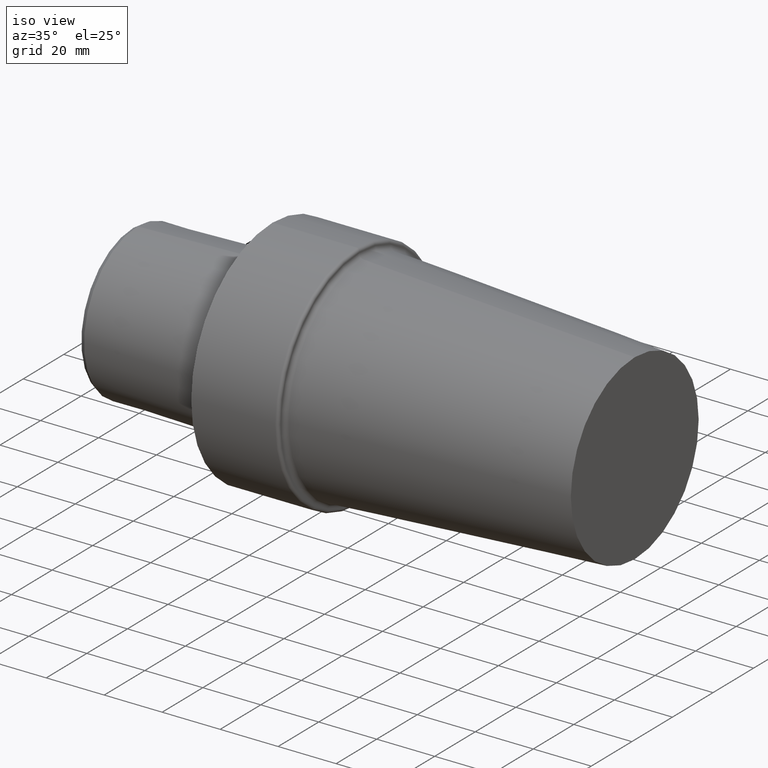
[diagram: clean part render]
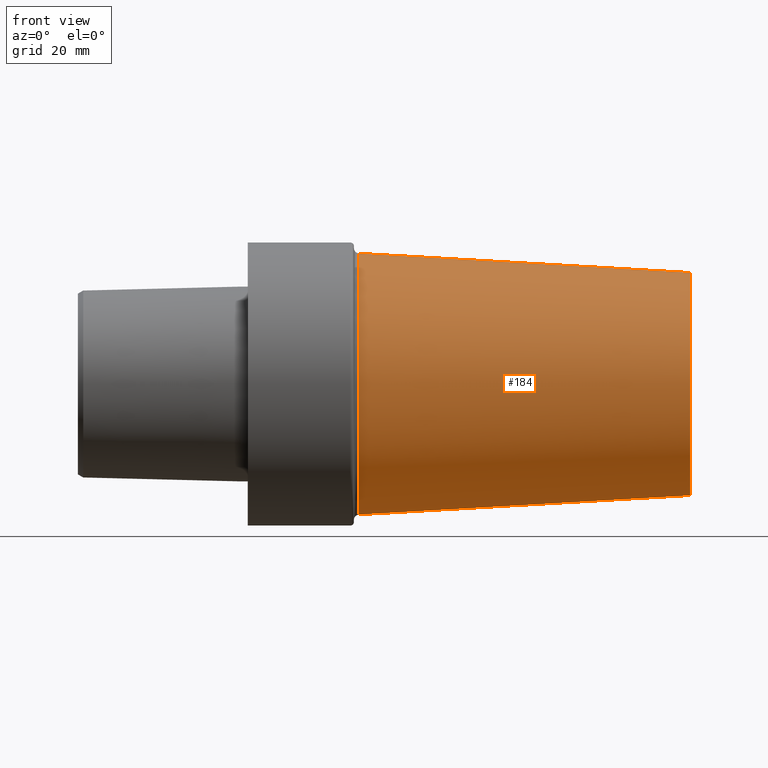
[diagram: tour spotlight — one face highlighted and labeled with its STEP entity id]
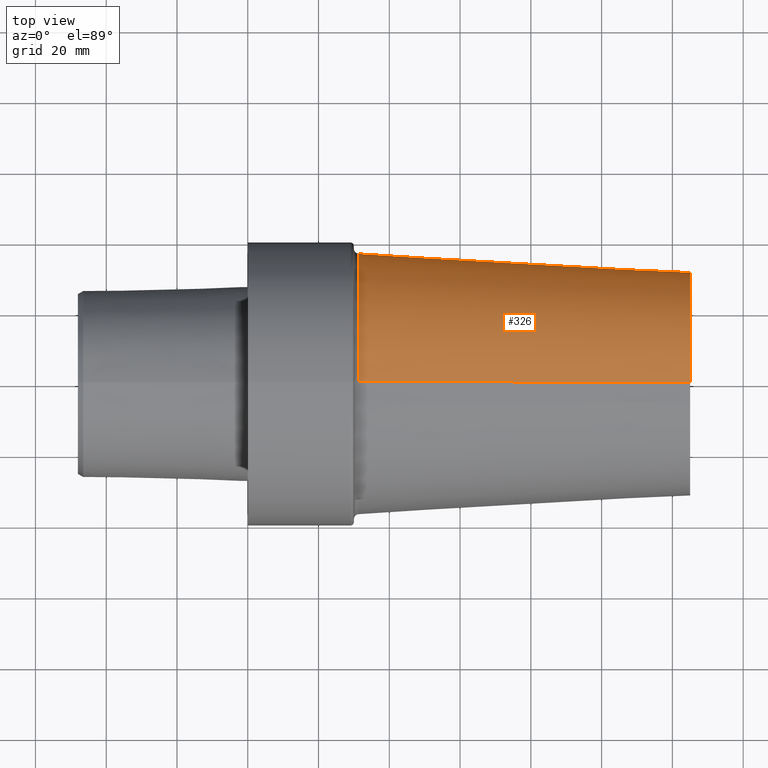
[diagram: tour spotlight — one face highlighted and labeled with its STEP entity id]
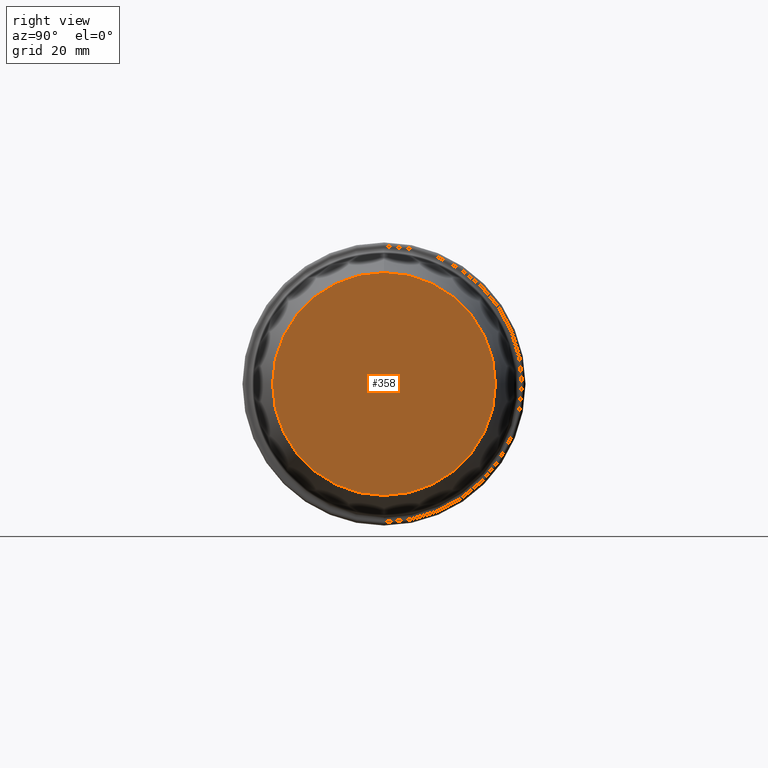
[diagram: tour spotlight — one face highlighted and labeled with its STEP entity id]
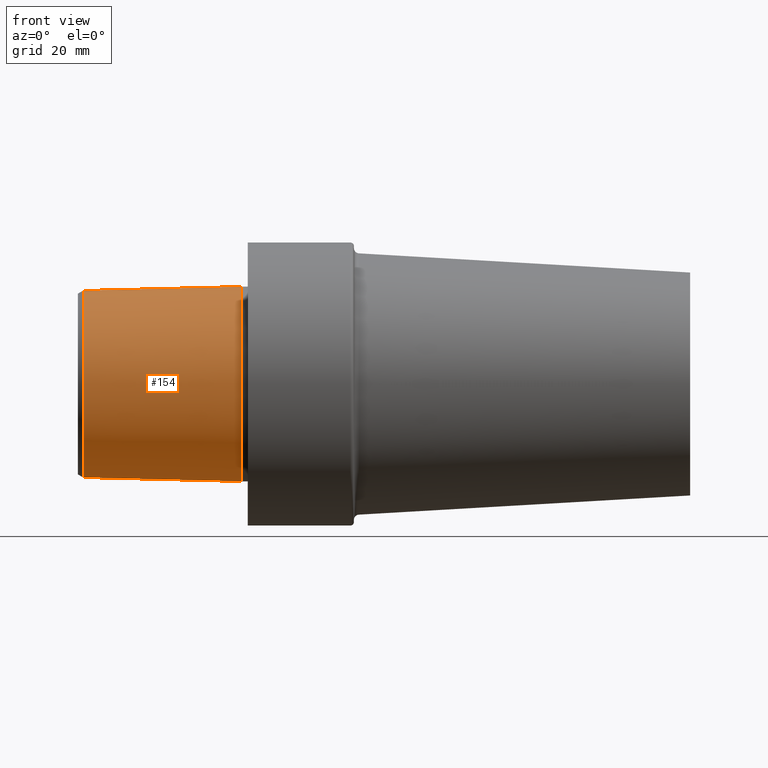
[diagram: tour spotlight — one face highlighted and labeled with its STEP entity id]
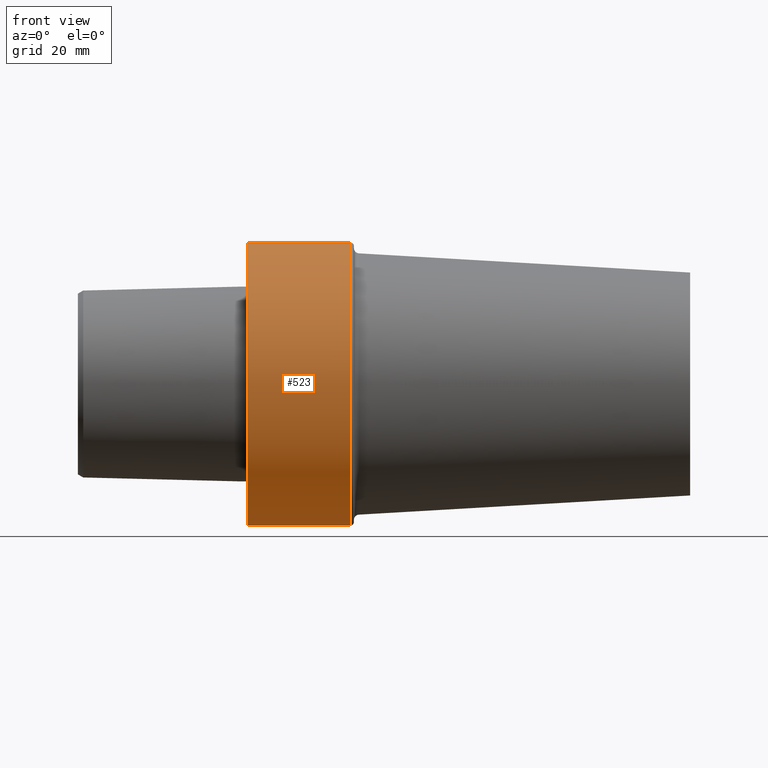
[diagram: tour spotlight — one face highlighted and labeled with its STEP entity id]
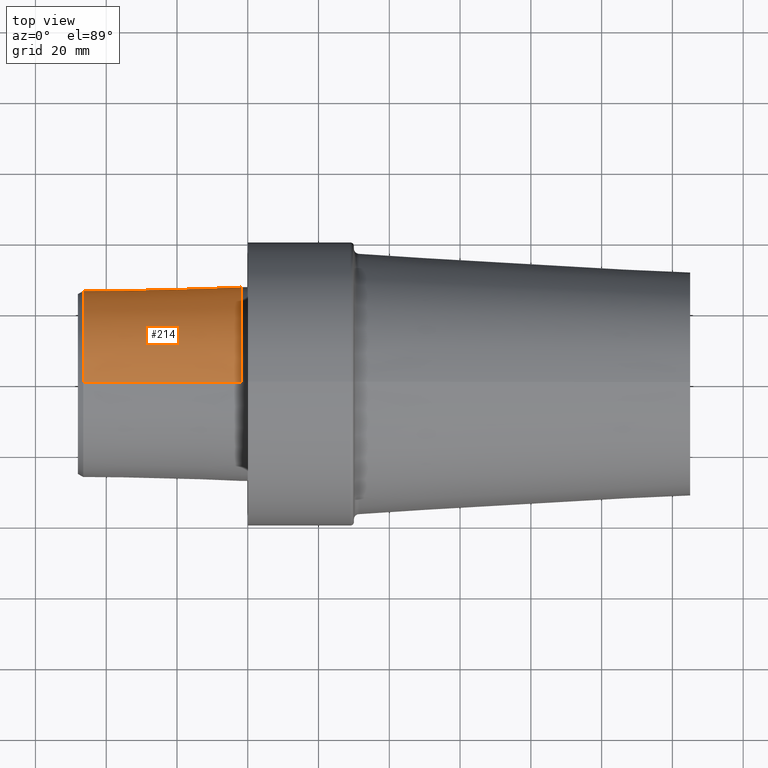
[diagram: tour spotlight — one face highlighted and labeled with its STEP entity id]
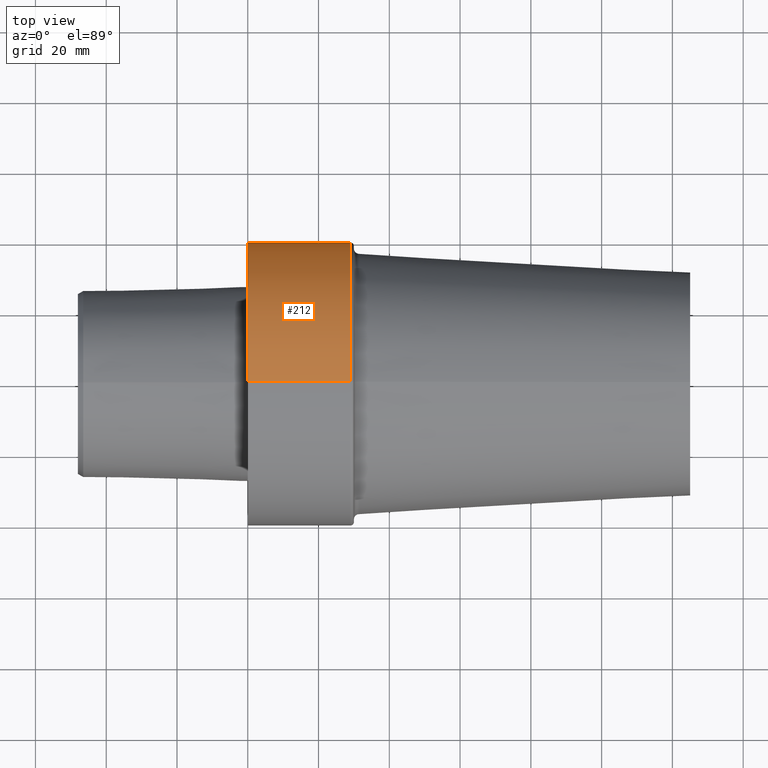
[diagram: tour spotlight — one face highlighted and labeled with its STEP entity id]
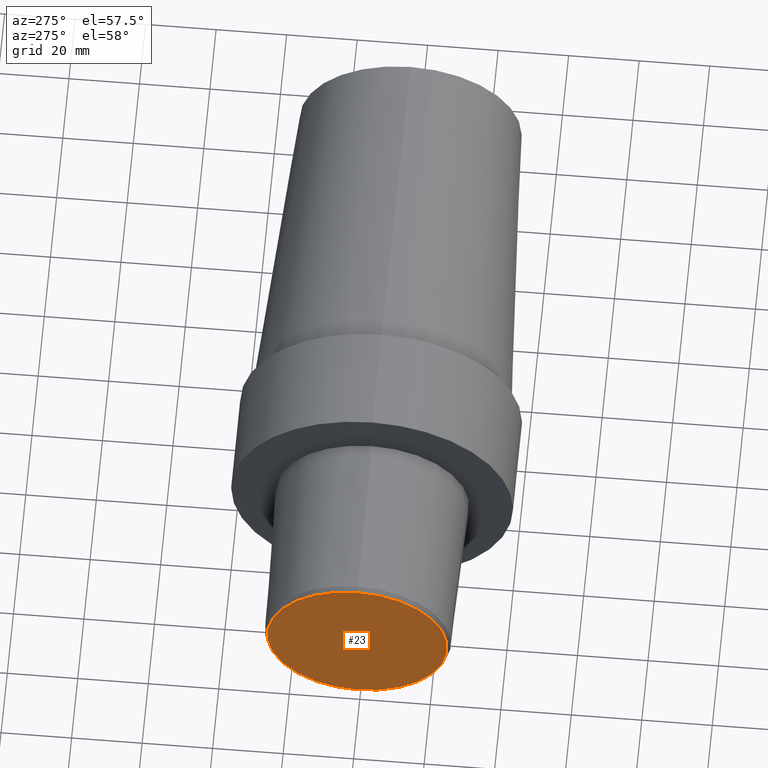
[diagram: tour spotlight — one face highlighted and labeled with its STEP entity id]
A machine part: a face-by-face anatomy tour. The part has 18 B-rep faces; the first image is the clean iso view, then the 8 largest visible faces are spotlighted one at a time (largest first), each with its STEP entity span.

Face 1 — front view, entity #184. In plain terms, the highlighted conical surface has half-angle 3.313 deg.
Definition (entity closure, byte-faithful):
#14 = EDGE_CURVE ( 'NONE', #29, #408, #344, .T. ) ;
#29 = VERTEX_POINT ( 'NONE', #104 ) ;
#86 = DIRECTION ( 'NONE',  ( -1.000000000000000000, 0.000000000000000000, 0.000000000000000000 ) ) ;
#88 = CARTESIAN_POINT ( 'NONE',  ( 124.9999989825000029, 0.000000000000000000, 0.000000000000000000 ) ) ;
#99 = VECTOR ( 'NONE', #187, 1000.000000000000000 ) ;
#104 = CARTESIAN_POINT ( 'NONE',  ( 124.9999989825000029, 4.189405080688302901E-15, -31.49999996787000001 ) ) ;
#111 = DIRECTION ( 'NONE',  ( -1.000000000000000000, 0.000000000000000000, 0.000000000000000000 ) ) ;
#115 = CARTESIAN_POINT ( 'NONE',  ( 31.41330303795843193, 0.000000000000000000, 36.91817715234346053 ) ) ;
#116 = LINE ( 'NONE', #440, #435 ) ;
#117 = EDGE_CURVE ( 'NONE', #517, #125, #467, .T. ) ;
#125 = VERTEX_POINT ( 'NONE', #115 ) ;
#140 = CARTESIAN_POINT ( 'NONE',  ( 31.41330303795843193, 0.000000000000000000, 0.000000000000000000 ) ) ;
#156 = DIRECTION ( 'NONE',  ( 0.000000000000000000, 0.000000000000000000, 1.000000000000000000 ) ) ;
#164 = FACE_OUTER_BOUND ( 'NONE', #458, .T. ) ;
#184 = ADVANCED_FACE ( 'NONE', ( #164 ), #366, .T. ) ;
#187 = DIRECTION ( 'NONE',  ( -0.9983283009212045034, 7.078208035069237326E-18, -0.05779795480621317122 ) ) ;
#206 = DIRECTION ( 'NONE',  ( 0.000000000000000000, 0.000000000000000000, 1.000000000000000000 ) ) ;
#238 = CARTESIAN_POINT ( 'NONE',  ( 31.41330303795843193, 4.521172747997237922E-15, -36.91817715234346053 ) ) ;
#239 = AXIS2_PLACEMENT_3D ( 'NONE', #88, #86, #206 ) ;
#243 = DIRECTION ( 'NONE',  ( -0.9983283009212045034, 0.000000000000000000, 0.05779795480621317122 ) ) ;
#285 = ORIENTED_EDGE ( 'NONE', *, *, #117, .F. ) ;
#289 = CARTESIAN_POINT ( 'NONE',  ( 124.9999989825000029, 0.000000000000000000, 31.49999996787000001 ) ) ;
#316 = DIRECTION ( 'NONE',  ( -1.000000000000000000, 0.000000000000000000, 0.000000000000000000 ) ) ;
#320 = AXIS2_PLACEMENT_3D ( 'NONE', #438, #111, #156 ) ;
#337 = AXIS2_PLACEMENT_3D ( 'NONE', #140, #316, #475 ) ;
#344 = CIRCLE ( 'NONE', #239, 31.49999996787000001 ) ;
#366 = CONICAL_SURFACE ( 'NONE', #320, 31.49999996787000001, 0.05783018328704118971 ) ;
#379 = ORIENTED_EDGE ( 'NONE', *, *, #14, .T. ) ;
#386 = EDGE_CURVE ( 'NONE', #408, #125, #116, .T. ) ;
#394 = ORIENTED_EDGE ( 'NONE', *, *, #513, .F. ) ;
#408 = VERTEX_POINT ( 'NONE', #289 ) ;
#435 = VECTOR ( 'NONE', #243, 1000.000000000000000 ) ;
#438 = CARTESIAN_POINT ( 'NONE',  ( 124.9999989825000029, 0.000000000000000000, 0.000000000000000000 ) ) ;
#440 = CARTESIAN_POINT ( 'NONE',  ( 124.9999989825000029, 0.000000000000000000, 31.49999996787000001 ) ) ;
#446 = CARTESIAN_POINT ( 'NONE',  ( 124.9999989825000029, 3.857637413379370248E-15, -31.49999996787000001 ) ) ;
#458 = EDGE_LOOP ( 'NONE', ( #394, #379, #463, #285 ) ) ;
#463 = ORIENTED_EDGE ( 'NONE', *, *, #386, .T. ) ;
#467 = CIRCLE ( 'NONE', #337, 36.91817715234346053 ) ;
#475 = DIRECTION ( 'NONE',  ( 0.000000000000000000, 0.000000000000000000, 1.000000000000000000 ) ) ;
#492 = LINE ( 'NONE', #446, #99 ) ;
#513 = EDGE_CURVE ( 'NONE', #29, #517, #492, .T. ) ;
#517 = VERTEX_POINT ( 'NONE', #238 ) ;

Face 2 — top view, entity #326. In plain terms, the highlighted conical surface has half-angle 3.313 deg.
Definition (entity closure, byte-faithful):
#6 = AXIS2_PLACEMENT_3D ( 'NONE', #519, #82, #257 ) ;
#12 = DIRECTION ( 'NONE',  ( 0.000000000000000000, 0.000000000000000000, 1.000000000000000000 ) ) ;
#22 = EDGE_CURVE ( 'NONE', #408, #29, #477, .T. ) ;
#29 = VERTEX_POINT ( 'NONE', #104 ) ;
#53 = CARTESIAN_POINT ( 'NONE',  ( 124.9999989825000029, 0.000000000000000000, 0.000000000000000000 ) ) ;
#82 = DIRECTION ( 'NONE',  ( -1.000000000000000000, 0.000000000000000000, 0.000000000000000000 ) ) ;
#99 = VECTOR ( 'NONE', #187, 1000.000000000000000 ) ;
#104 = CARTESIAN_POINT ( 'NONE',  ( 124.9999989825000029, 4.189405080688302901E-15, -31.49999996787000001 ) ) ;
#115 = CARTESIAN_POINT ( 'NONE',  ( 31.41330303795843193, 0.000000000000000000, 36.91817715234346053 ) ) ;
#116 = LINE ( 'NONE', #440, #435 ) ;
#125 = VERTEX_POINT ( 'NONE', #115 ) ;
#187 = DIRECTION ( 'NONE',  ( -0.9983283009212045034, 7.078208035069237326E-18, -0.05779795480621317122 ) ) ;
#203 = ORIENTED_EDGE ( 'NONE', *, *, #386, .F. ) ;
#216 = DIRECTION ( 'NONE',  ( -1.000000000000000000, 0.000000000000000000, 0.000000000000000000 ) ) ;
#217 = ORIENTED_EDGE ( 'NONE', *, *, #513, .T. ) ;
#238 = CARTESIAN_POINT ( 'NONE',  ( 31.41330303795843193, 4.521172747997237922E-15, -36.91817715234346053 ) ) ;
#243 = DIRECTION ( 'NONE',  ( -0.9983283009212045034, 0.000000000000000000, 0.05779795480621317122 ) ) ;
#244 = AXIS2_PLACEMENT_3D ( 'NONE', #365, #453, #332 ) ;
#257 = DIRECTION ( 'NONE',  ( 0.000000000000000000, 0.000000000000000000, 1.000000000000000000 ) ) ;
#289 = CARTESIAN_POINT ( 'NONE',  ( 124.9999989825000029, 0.000000000000000000, 31.49999996787000001 ) ) ;
#312 = EDGE_LOOP ( 'NONE', ( #473, #217, #347, #203 ) ) ;
#326 = ADVANCED_FACE ( 'NONE', ( #426 ), #327, .T. ) ;
#327 = CONICAL_SURFACE ( 'NONE', #450, 31.49999996787000001, 0.05783018328704118971 ) ;
#332 = DIRECTION ( 'NONE',  ( 0.000000000000000000, 0.000000000000000000, 1.000000000000000000 ) ) ;
#347 = ORIENTED_EDGE ( 'NONE', *, *, #441, .F. ) ;
#365 = CARTESIAN_POINT ( 'NONE',  ( 31.41330303795843193, 0.000000000000000000, 0.000000000000000000 ) ) ;
#386 = EDGE_CURVE ( 'NONE', #408, #125, #116, .T. ) ;
#408 = VERTEX_POINT ( 'NONE', #289 ) ;
#426 = FACE_OUTER_BOUND ( 'NONE', #312, .T. ) ;
#435 = VECTOR ( 'NONE', #243, 1000.000000000000000 ) ;
#440 = CARTESIAN_POINT ( 'NONE',  ( 124.9999989825000029, 0.000000000000000000, 31.49999996787000001 ) ) ;
#441 = EDGE_CURVE ( 'NONE', #125, #517, #479, .T. ) ;
#446 = CARTESIAN_POINT ( 'NONE',  ( 124.9999989825000029, 3.857637413379370248E-15, -31.49999996787000001 ) ) ;
#450 = AXIS2_PLACEMENT_3D ( 'NONE', #53, #216, #12 ) ;
#453 = DIRECTION ( 'NONE',  ( -1.000000000000000000, 0.000000000000000000, 0.000000000000000000 ) ) ;
#473 = ORIENTED_EDGE ( 'NONE', *, *, #22, .T. ) ;
#477 = CIRCLE ( 'NONE', #6, 31.49999996787000001 ) ;
#479 = CIRCLE ( 'NONE', #244, 36.91817715234346053 ) ;
#492 = LINE ( 'NONE', #446, #99 ) ;
#513 = EDGE_CURVE ( 'NONE', #29, #517, #492, .T. ) ;
#517 = VERTEX_POINT ( 'NONE', #238 ) ;
#519 = CARTESIAN_POINT ( 'NONE',  ( 124.9999989825000029, 0.000000000000000000, 0.000000000000000000 ) ) ;

Face 3 — right view, entity #358. In plain terms, the highlighted planar face has unit normal (-1, 0, 0).
Definition (entity closure, byte-faithful):
#6 = AXIS2_PLACEMENT_3D ( 'NONE', #519, #82, #257 ) ;
#14 = EDGE_CURVE ( 'NONE', #29, #408, #344, .T. ) ;
#22 = EDGE_CURVE ( 'NONE', #408, #29, #477, .T. ) ;
#28 = FACE_OUTER_BOUND ( 'NONE', #43, .T. ) ;
#29 = VERTEX_POINT ( 'NONE', #104 ) ;
#43 = EDGE_LOOP ( 'NONE', ( #421, #71 ) ) ;
#71 = ORIENTED_EDGE ( 'NONE', *, *, #14, .F. ) ;
#82 = DIRECTION ( 'NONE',  ( -1.000000000000000000, 0.000000000000000000, 0.000000000000000000 ) ) ;
#86 = DIRECTION ( 'NONE',  ( -1.000000000000000000, 0.000000000000000000, 0.000000000000000000 ) ) ;
#88 = CARTESIAN_POINT ( 'NONE',  ( 124.9999989825000029, 0.000000000000000000, 0.000000000000000000 ) ) ;
#104 = CARTESIAN_POINT ( 'NONE',  ( 124.9999989825000029, 4.189405080688302901E-15, -31.49999996787000001 ) ) ;
#106 = DIRECTION ( 'NONE',  ( 0.000000000000000000, 0.000000000000000000, 1.000000000000000000 ) ) ;
#181 = AXIS2_PLACEMENT_3D ( 'NONE', #409, #282, #106 ) ;
#206 = DIRECTION ( 'NONE',  ( 0.000000000000000000, 0.000000000000000000, 1.000000000000000000 ) ) ;
#239 = AXIS2_PLACEMENT_3D ( 'NONE', #88, #86, #206 ) ;
#257 = DIRECTION ( 'NONE',  ( 0.000000000000000000, 0.000000000000000000, 1.000000000000000000 ) ) ;
#282 = DIRECTION ( 'NONE',  ( -1.000000000000000000, 0.000000000000000000, 0.000000000000000000 ) ) ;
#289 = CARTESIAN_POINT ( 'NONE',  ( 124.9999989825000029, 0.000000000000000000, 31.49999996787000001 ) ) ;
#344 = CIRCLE ( 'NONE', #239, 31.49999996787000001 ) ;
#358 = ADVANCED_FACE ( 'NONE', ( #28 ), #449, .F. ) ;
#408 = VERTEX_POINT ( 'NONE', #289 ) ;
#409 = CARTESIAN_POINT ( 'NONE',  ( 124.9999989825000029, 0.000000000000000000, 0.000000000000000000 ) ) ;
#421 = ORIENTED_EDGE ( 'NONE', *, *, #22, .F. ) ;
#449 = PLANE ( 'NONE',  #181 ) ;
#477 = CIRCLE ( 'NONE', #6, 31.49999996787000001 ) ;
#519 = CARTESIAN_POINT ( 'NONE',  ( 124.9999989825000029, 0.000000000000000000, 0.000000000000000000 ) ) ;

Face 4 — front view, entity #154. In plain terms, the highlighted conical surface has half-angle 1.432 deg.
Definition (entity closure, byte-faithful):
#33 = FACE_OUTER_BOUND ( 'NONE', #267, .T. ) ;
#69 = CARTESIAN_POINT ( 'NONE',  ( -1.940694418020491918, 3.371024998973778328E-15, 27.52650806192296074 ) ) ;
#70 = VECTOR ( 'NONE', #417, 1000.000000000000114 ) ;
#72 = DIRECTION ( 'NONE',  ( -1.000000000000000000, 0.000000000000000000, 0.000000000000000000 ) ) ;
#84 = CIRCLE ( 'NONE', #300, 27.52650806192296074 ) ;
#121 = CARTESIAN_POINT ( 'NONE',  ( -1.940694418020491918, 3.371024998973778328E-15, -27.52650806192296074 ) ) ;
#133 = DIRECTION ( 'NONE',  ( -1.000000000000000000, 0.000000000000000000, 0.000000000000000000 ) ) ;
#151 = CIRCLE ( 'NONE', #459, 26.41260027305914804 ) ;
#153 = CARTESIAN_POINT ( 'NONE',  ( -46.49999995257000052, 3.302817818564909263E-15, 26.41260027305914804 ) ) ;
#154 = ADVANCED_FACE ( 'NONE', ( #33 ), #281, .T. ) ;
#163 = DIRECTION ( 'NONE',  ( 0.000000000000000000, 0.000000000000000000, 1.000000000000000000 ) ) ;
#176 = EDGE_CURVE ( 'NONE', #502, #514, #331, .T. ) ;
#178 = CARTESIAN_POINT ( 'NONE',  ( -1.940694418020491918, 0.000000000000000000, 0.000000000000000000 ) ) ;
#199 = CARTESIAN_POINT ( 'NONE',  ( -1.940694418020491918, 0.000000000000000000, 0.000000000000000000 ) ) ;
#255 = ORIENTED_EDGE ( 'NONE', *, *, #258, .T. ) ;
#258 = EDGE_CURVE ( 'NONE', #355, #297, #376, .T. ) ;
#260 = CARTESIAN_POINT ( 'NONE',  ( -46.49999995257000052, 0.000000000000000000, -26.41260027305914804 ) ) ;
#267 = EDGE_LOOP ( 'NONE', ( #302, #329, #255, #425 ) ) ;
#281 = CONICAL_SURFACE ( 'NONE', #353, 27.52650806192296074, 0.02499311489546479637 ) ;
#291 = VECTOR ( 'NONE', #538, 1000.000000000000114 ) ;
#297 = VERTEX_POINT ( 'NONE', #121 ) ;
#300 = AXIS2_PLACEMENT_3D ( 'NONE', #178, #133, #468 ) ;
#302 = ORIENTED_EDGE ( 'NONE', *, *, #176, .F. ) ;
#329 = ORIENTED_EDGE ( 'NONE', *, *, #372, .F. ) ;
#331 = LINE ( 'NONE', #69, #291 ) ;
#343 = EDGE_CURVE ( 'NONE', #297, #514, #84, .T. ) ;
#353 = AXIS2_PLACEMENT_3D ( 'NONE', #199, #535, #442 ) ;
#355 = VERTEX_POINT ( 'NONE', #260 ) ;
#363 = CARTESIAN_POINT ( 'NONE',  ( -1.940694418020491918, 0.000000000000000000, 27.52650806192296074 ) ) ;
#372 = EDGE_CURVE ( 'NONE', #355, #502, #151, .T. ) ;
#376 = LINE ( 'NONE', #539, #70 ) ;
#417 = DIRECTION ( 'NONE',  ( 0.9996876883616916398, 0.000000000000000000, -0.02499051296106804404 ) ) ;
#425 = ORIENTED_EDGE ( 'NONE', *, *, #343, .T. ) ;
#442 = DIRECTION ( 'NONE',  ( 0.000000000000000000, 0.000000000000000000, -1.000000000000000000 ) ) ;
#459 = AXIS2_PLACEMENT_3D ( 'NONE', #497, #72, #163 ) ;
#468 = DIRECTION ( 'NONE',  ( 0.000000000000000000, 0.000000000000000000, 1.000000000000000000 ) ) ;
#497 = CARTESIAN_POINT ( 'NONE',  ( -46.49999995257000052, 0.000000000000000000, 0.000000000000000000 ) ) ;
#502 = VERTEX_POINT ( 'NONE', #153 ) ;
#514 = VERTEX_POINT ( 'NONE', #363 ) ;
#535 = DIRECTION ( 'NONE',  ( 1.000000000000000000, 0.000000000000000000, 0.000000000000000000 ) ) ;
#538 = DIRECTION ( 'NONE',  ( 0.9996876883616916398, 3.060455170682238758E-18, 0.02499051296106804404 ) ) ;
#539 = CARTESIAN_POINT ( 'NONE',  ( -1.940694418020491918, 0.000000000000000000, -27.52650806192296074 ) ) ;

Face 5 — front view, entity #523. In plain terms, the highlighted cylindrical surface (partial cylindrical patch) has radius 39.9925 mm, axis along (-1, 0, 0).
Definition (entity closure, byte-faithful):
#1 = AXIS2_PLACEMENT_3D ( 'NONE', #322, #275, #401 ) ;
#2 = VERTEX_POINT ( 'NONE', #54 ) ;
#38 = CARTESIAN_POINT ( 'NONE',  ( -47.99999995373141815, 0.000000000000000000, 39.99249995920764889 ) ) ;
#39 = EDGE_LOOP ( 'NONE', ( #510, #179, #158, #74 ) ) ;
#40 = EDGE_CURVE ( 'NONE', #370, #418, #227, .T. ) ;
#54 = CARTESIAN_POINT ( 'NONE',  ( 28.99999997041999933, 4.897668706494425201E-15, -39.99249995920764889 ) ) ;
#74 = ORIENTED_EDGE ( 'NONE', *, *, #40, .F. ) ;
#122 = DIRECTION ( 'NONE',  ( 0.000000000000000000, 0.000000000000000000, 1.000000000000000000 ) ) ;
#123 = DIRECTION ( 'NONE',  ( -1.000000000000000000, 0.000000000000000000, 0.000000000000000000 ) ) ;
#158 = ORIENTED_EDGE ( 'NONE', *, *, #236, .T. ) ;
#179 = ORIENTED_EDGE ( 'NONE', *, *, #434, .T. ) ;
#189 = DIRECTION ( 'NONE',  ( -1.000000000000000000, 0.000000000000000000, 0.000000000000000000 ) ) ;
#192 = CARTESIAN_POINT ( 'NONE',  ( 28.99999997041999933, 0.000000000000000000, 0.000000000000000000 ) ) ;
#196 = CARTESIAN_POINT ( 'NONE',  ( 28.99999997041999933, 0.000000000000000000, 39.99249995920764889 ) ) ;
#205 = VECTOR ( 'NONE', #296, 1000.000000000000000 ) ;
#227 = CIRCLE ( 'NONE', #1, 39.99249995920764889 ) ;
#231 = VECTOR ( 'NONE', #123, 1000.000000000000000 ) ;
#236 = EDGE_CURVE ( 'NONE', #380, #418, #340, .T. ) ;
#271 = AXIS2_PLACEMENT_3D ( 'NONE', #192, #189, #335 ) ;
#275 = DIRECTION ( 'NONE',  ( -1.000000000000000000, 0.000000000000000000, 0.000000000000000000 ) ) ;
#295 = EDGE_CURVE ( 'NONE', #2, #370, #504, .T. ) ;
#296 = DIRECTION ( 'NONE',  ( -1.000000000000000000, 0.000000000000000000, 0.000000000000000000 ) ) ;
#322 = CARTESIAN_POINT ( 'NONE',  ( 0.000000000000000000, 0.000000000000000000, 0.000000000000000000 ) ) ;
#323 = CYLINDRICAL_SURFACE ( 'NONE', #420, 39.99249995920764889 ) ;
#335 = DIRECTION ( 'NONE',  ( 0.000000000000000000, 0.000000000000000000, 1.000000000000000000 ) ) ;
#340 = LINE ( 'NONE', #38, #231 ) ;
#345 = DIRECTION ( 'NONE',  ( -1.000000000000000000, 0.000000000000000000, 0.000000000000000000 ) ) ;
#370 = VERTEX_POINT ( 'NONE', #371 ) ;
#371 = CARTESIAN_POINT ( 'NONE',  ( 0.000000000000000000, 4.897668706494433089E-15, -39.99249995920764889 ) ) ;
#380 = VERTEX_POINT ( 'NONE', #196 ) ;
#401 = DIRECTION ( 'NONE',  ( 0.000000000000000000, 0.000000000000000000, 1.000000000000000000 ) ) ;
#418 = VERTEX_POINT ( 'NONE', #534 ) ;
#420 = AXIS2_PLACEMENT_3D ( 'NONE', #503, #345, #122 ) ;
#434 = EDGE_CURVE ( 'NONE', #2, #380, #507, .T. ) ;
#501 = CARTESIAN_POINT ( 'NONE',  ( -47.99999995373141815, 4.897668706494433089E-15, -39.99249995920764889 ) ) ;
#503 = CARTESIAN_POINT ( 'NONE',  ( -47.99999995373141815, 0.000000000000000000, 0.000000000000000000 ) ) ;
#504 = LINE ( 'NONE', #501, #205 ) ;
#507 = CIRCLE ( 'NONE', #271, 39.99249995920764889 ) ;
#510 = ORIENTED_EDGE ( 'NONE', *, *, #295, .F. ) ;
#523 = ADVANCED_FACE ( 'NONE', ( #526 ), #323, .T. ) ;
#526 = FACE_OUTER_BOUND ( 'NONE', #39, .T. ) ;
#534 = CARTESIAN_POINT ( 'NONE',  ( 0.000000000000000000, 0.000000000000000000, 39.99249995920764889 ) ) ;

Face 6 — top view, entity #214. In plain terms, the highlighted conical surface has half-angle 1.432 deg.
Definition (entity closure, byte-faithful):
#7 = AXIS2_PLACEMENT_3D ( 'NONE', #245, #364, #490 ) ;
#27 = AXIS2_PLACEMENT_3D ( 'NONE', #174, #381, #456 ) ;
#50 = CIRCLE ( 'NONE', #7, 27.52650806192296074 ) ;
#65 = CIRCLE ( 'NONE', #439, 26.41260027305914804 ) ;
#69 = CARTESIAN_POINT ( 'NONE',  ( -1.940694418020491918, 3.371024998973778328E-15, 27.52650806192296074 ) ) ;
#70 = VECTOR ( 'NONE', #417, 1000.000000000000114 ) ;
#92 = EDGE_CURVE ( 'NONE', #502, #355, #65, .T. ) ;
#121 = CARTESIAN_POINT ( 'NONE',  ( -1.940694418020491918, 3.371024998973778328E-15, -27.52650806192296074 ) ) ;
#134 = EDGE_CURVE ( 'NONE', #514, #297, #50, .T. ) ;
#153 = CARTESIAN_POINT ( 'NONE',  ( -46.49999995257000052, 3.302817818564909263E-15, 26.41260027305914804 ) ) ;
#174 = CARTESIAN_POINT ( 'NONE',  ( -1.940694418020491918, 0.000000000000000000, 0.000000000000000000 ) ) ;
#176 = EDGE_CURVE ( 'NONE', #502, #514, #331, .T. ) ;
#195 = ORIENTED_EDGE ( 'NONE', *, *, #92, .F. ) ;
#202 = FACE_OUTER_BOUND ( 'NONE', #211, .T. ) ;
#211 = EDGE_LOOP ( 'NONE', ( #195, #387, #505, #305 ) ) ;
#214 = ADVANCED_FACE ( 'NONE', ( #202 ), #422, .T. ) ;
#218 = DIRECTION ( 'NONE',  ( 0.000000000000000000, 0.000000000000000000, 1.000000000000000000 ) ) ;
#245 = CARTESIAN_POINT ( 'NONE',  ( -1.940694418020491918, 0.000000000000000000, 0.000000000000000000 ) ) ;
#258 = EDGE_CURVE ( 'NONE', #355, #297, #376, .T. ) ;
#260 = CARTESIAN_POINT ( 'NONE',  ( -46.49999995257000052, 0.000000000000000000, -26.41260027305914804 ) ) ;
#272 = DIRECTION ( 'NONE',  ( -1.000000000000000000, 0.000000000000000000, 0.000000000000000000 ) ) ;
#291 = VECTOR ( 'NONE', #538, 1000.000000000000114 ) ;
#297 = VERTEX_POINT ( 'NONE', #121 ) ;
#305 = ORIENTED_EDGE ( 'NONE', *, *, #258, .F. ) ;
#331 = LINE ( 'NONE', #69, #291 ) ;
#355 = VERTEX_POINT ( 'NONE', #260 ) ;
#356 = CARTESIAN_POINT ( 'NONE',  ( -46.49999995257000052, 0.000000000000000000, 0.000000000000000000 ) ) ;
#363 = CARTESIAN_POINT ( 'NONE',  ( -1.940694418020491918, 0.000000000000000000, 27.52650806192296074 ) ) ;
#364 = DIRECTION ( 'NONE',  ( -1.000000000000000000, 0.000000000000000000, 0.000000000000000000 ) ) ;
#376 = LINE ( 'NONE', #539, #70 ) ;
#381 = DIRECTION ( 'NONE',  ( 1.000000000000000000, 0.000000000000000000, 0.000000000000000000 ) ) ;
#387 = ORIENTED_EDGE ( 'NONE', *, *, #176, .T. ) ;
#417 = DIRECTION ( 'NONE',  ( 0.9996876883616916398, 0.000000000000000000, -0.02499051296106804404 ) ) ;
#422 = CONICAL_SURFACE ( 'NONE', #27, 27.52650806192296074, 0.02499311489546479637 ) ;
#439 = AXIS2_PLACEMENT_3D ( 'NONE', #356, #272, #218 ) ;
#456 = DIRECTION ( 'NONE',  ( 0.000000000000000000, 0.000000000000000000, -1.000000000000000000 ) ) ;
#490 = DIRECTION ( 'NONE',  ( 0.000000000000000000, 0.000000000000000000, 1.000000000000000000 ) ) ;
#502 = VERTEX_POINT ( 'NONE', #153 ) ;
#505 = ORIENTED_EDGE ( 'NONE', *, *, #134, .T. ) ;
#514 = VERTEX_POINT ( 'NONE', #363 ) ;
#538 = DIRECTION ( 'NONE',  ( 0.9996876883616916398, 3.060455170682238758E-18, 0.02499051296106804404 ) ) ;
#539 = CARTESIAN_POINT ( 'NONE',  ( -1.940694418020491918, 0.000000000000000000, -27.52650806192296074 ) ) ;

Face 7 — top view, entity #212. In plain terms, the highlighted cylindrical surface (partial cylindrical patch) has radius 39.9925 mm, axis along (-1, 0, 0).
Definition (entity closure, byte-faithful):
#2 = VERTEX_POINT ( 'NONE', #54 ) ;
#3 = ORIENTED_EDGE ( 'NONE', *, *, #303, .F. ) ;
#17 = DIRECTION ( 'NONE',  ( -1.000000000000000000, 0.000000000000000000, 0.000000000000000000 ) ) ;
#38 = CARTESIAN_POINT ( 'NONE',  ( -47.99999995373141815, 0.000000000000000000, 39.99249995920764889 ) ) ;
#41 = DIRECTION ( 'NONE',  ( -1.000000000000000000, 0.000000000000000000, 0.000000000000000000 ) ) ;
#48 = FACE_OUTER_BOUND ( 'NONE', #209, .T. ) ;
#54 = CARTESIAN_POINT ( 'NONE',  ( 28.99999997041999933, 4.897668706494425201E-15, -39.99249995920764889 ) ) ;
#61 = AXIS2_PLACEMENT_3D ( 'NONE', #465, #41, #384 ) ;
#80 = EDGE_CURVE ( 'NONE', #380, #2, #135, .T. ) ;
#118 = AXIS2_PLACEMENT_3D ( 'NONE', #516, #351, #389 ) ;
#123 = DIRECTION ( 'NONE',  ( -1.000000000000000000, 0.000000000000000000, 0.000000000000000000 ) ) ;
#135 = CIRCLE ( 'NONE', #310, 39.99249995920764889 ) ;
#146 = CARTESIAN_POINT ( 'NONE',  ( 28.99999997041999933, 0.000000000000000000, 0.000000000000000000 ) ) ;
#175 = ORIENTED_EDGE ( 'NONE', *, *, #236, .F. ) ;
#196 = CARTESIAN_POINT ( 'NONE',  ( 28.99999997041999933, 0.000000000000000000, 39.99249995920764889 ) ) ;
#205 = VECTOR ( 'NONE', #296, 1000.000000000000000 ) ;
#209 = EDGE_LOOP ( 'NONE', ( #237, #378, #3, #175 ) ) ;
#212 = ADVANCED_FACE ( 'NONE', ( #48 ), #248, .T. ) ;
#231 = VECTOR ( 'NONE', #123, 1000.000000000000000 ) ;
#236 = EDGE_CURVE ( 'NONE', #380, #418, #340, .T. ) ;
#237 = ORIENTED_EDGE ( 'NONE', *, *, #80, .T. ) ;
#248 = CYLINDRICAL_SURFACE ( 'NONE', #61, 39.99249995920764889 ) ;
#253 = CIRCLE ( 'NONE', #118, 39.99249995920764889 ) ;
#295 = EDGE_CURVE ( 'NONE', #2, #370, #504, .T. ) ;
#296 = DIRECTION ( 'NONE',  ( -1.000000000000000000, 0.000000000000000000, 0.000000000000000000 ) ) ;
#303 = EDGE_CURVE ( 'NONE', #418, #370, #253, .T. ) ;
#310 = AXIS2_PLACEMENT_3D ( 'NONE', #146, #17, #481 ) ;
#340 = LINE ( 'NONE', #38, #231 ) ;
#351 = DIRECTION ( 'NONE',  ( -1.000000000000000000, 0.000000000000000000, 0.000000000000000000 ) ) ;
#370 = VERTEX_POINT ( 'NONE', #371 ) ;
#371 = CARTESIAN_POINT ( 'NONE',  ( 0.000000000000000000, 4.897668706494433089E-15, -39.99249995920764889 ) ) ;
#378 = ORIENTED_EDGE ( 'NONE', *, *, #295, .T. ) ;
#380 = VERTEX_POINT ( 'NONE', #196 ) ;
#384 = DIRECTION ( 'NONE',  ( 0.000000000000000000, 0.000000000000000000, 1.000000000000000000 ) ) ;
#389 = DIRECTION ( 'NONE',  ( 0.000000000000000000, 0.000000000000000000, 1.000000000000000000 ) ) ;
#418 = VERTEX_POINT ( 'NONE', #534 ) ;
#465 = CARTESIAN_POINT ( 'NONE',  ( -47.99999995373141815, 0.000000000000000000, 0.000000000000000000 ) ) ;
#481 = DIRECTION ( 'NONE',  ( 0.000000000000000000, 0.000000000000000000, 1.000000000000000000 ) ) ;
#501 = CARTESIAN_POINT ( 'NONE',  ( -47.99999995373141815, 4.897668706494433089E-15, -39.99249995920764889 ) ) ;
#504 = LINE ( 'NONE', #501, #205 ) ;
#516 = CARTESIAN_POINT ( 'NONE',  ( 0.000000000000000000, 0.000000000000000000, 0.000000000000000000 ) ) ;
#534 = CARTESIAN_POINT ( 'NONE',  ( 0.000000000000000000, 0.000000000000000000, 39.99249995920764889 ) ) ;

Face 8 — auxiliary view, entity #23. In plain terms, the highlighted planar face has unit normal (1, 0, 0).
Definition (entity closure, byte-faithful):
#4 = FACE_OUTER_BOUND ( 'NONE', #298, .T. ) ;
#23 = ADVANCED_FACE ( 'NONE', ( #4 ), #385, .F. ) ;
#26 = CARTESIAN_POINT ( 'NONE',  ( -47.99999995373141815, 0.000000000000000000, -25.54657486860418558 ) ) ;
#30 = DIRECTION ( 'NONE',  ( -1.000000000000000000, 0.000000000000000000, 0.000000000000000000 ) ) ;
#91 = CIRCLE ( 'NONE', #193, 25.54657486860418558 ) ;
#95 = ORIENTED_EDGE ( 'NONE', *, *, #414, .T. ) ;
#112 = AXIS2_PLACEMENT_3D ( 'NONE', #165, #167, #338 ) ;
#165 = CARTESIAN_POINT ( 'NONE',  ( -47.99999995373141815, 0.000000000000000000, 0.000000000000000000 ) ) ;
#167 = DIRECTION ( 'NONE',  ( -1.000000000000000000, 0.000000000000000000, 0.000000000000000000 ) ) ;
#193 = AXIS2_PLACEMENT_3D ( 'NONE', #325, #30, #292 ) ;
#208 = DIRECTION ( 'NONE',  ( 0.000000000000000000, 1.000000000000000000, 0.000000000000000000 ) ) ;
#283 = EDGE_CURVE ( 'NONE', #428, #512, #444, .T. ) ;
#292 = DIRECTION ( 'NONE',  ( 0.000000000000000000, 0.000000000000000000, 1.000000000000000000 ) ) ;
#298 = EDGE_LOOP ( 'NONE', ( #95, #334 ) ) ;
#319 = AXIS2_PLACEMENT_3D ( 'NONE', #508, #461, #208 ) ;
#325 = CARTESIAN_POINT ( 'NONE',  ( -47.99999995373141815, 0.000000000000000000, 0.000000000000000000 ) ) ;
#334 = ORIENTED_EDGE ( 'NONE', *, *, #283, .T. ) ;
#338 = DIRECTION ( 'NONE',  ( 0.000000000000000000, 0.000000000000000000, 1.000000000000000000 ) ) ;
#385 = PLANE ( 'NONE',  #319 ) ;
#414 = EDGE_CURVE ( 'NONE', #512, #428, #91, .T. ) ;
#428 = VERTEX_POINT ( 'NONE', #488 ) ;
#444 = CIRCLE ( 'NONE', #112, 25.54657486860418558 ) ;
#461 = DIRECTION ( 'NONE',  ( 1.000000000000000000, 0.000000000000000000, 0.000000000000000000 ) ) ;
#488 = CARTESIAN_POINT ( 'NONE',  ( -47.99999995373141815, 3.181581876178735270E-15, 25.54657486860418558 ) ) ;
#508 = CARTESIAN_POINT ( 'NONE',  ( -47.99999995373141815, 25.54657486860418558, 0.000000000000000000 ) ) ;
#512 = VERTEX_POINT ( 'NONE', #26 ) ;